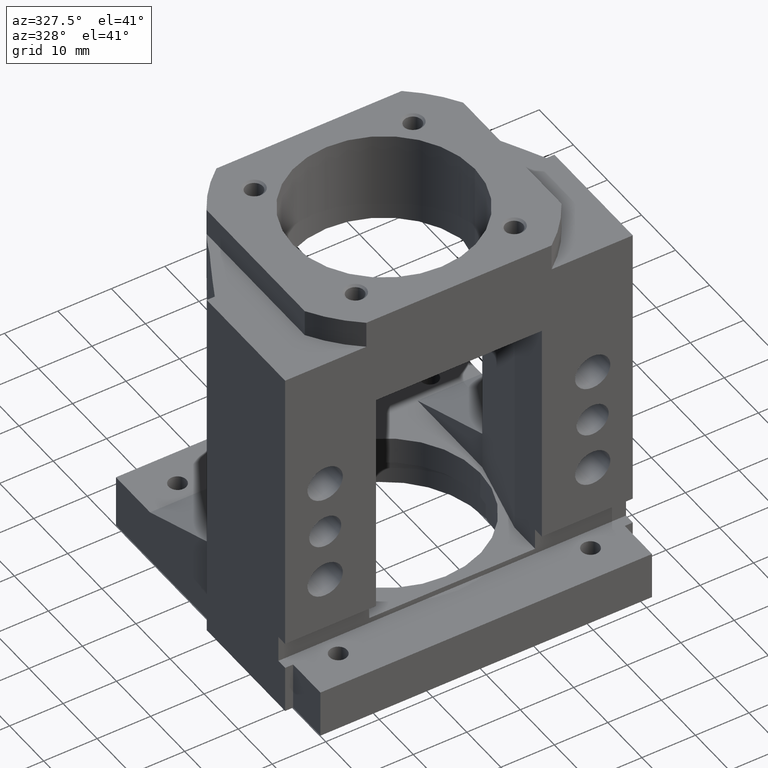
[diagram: clean part render]
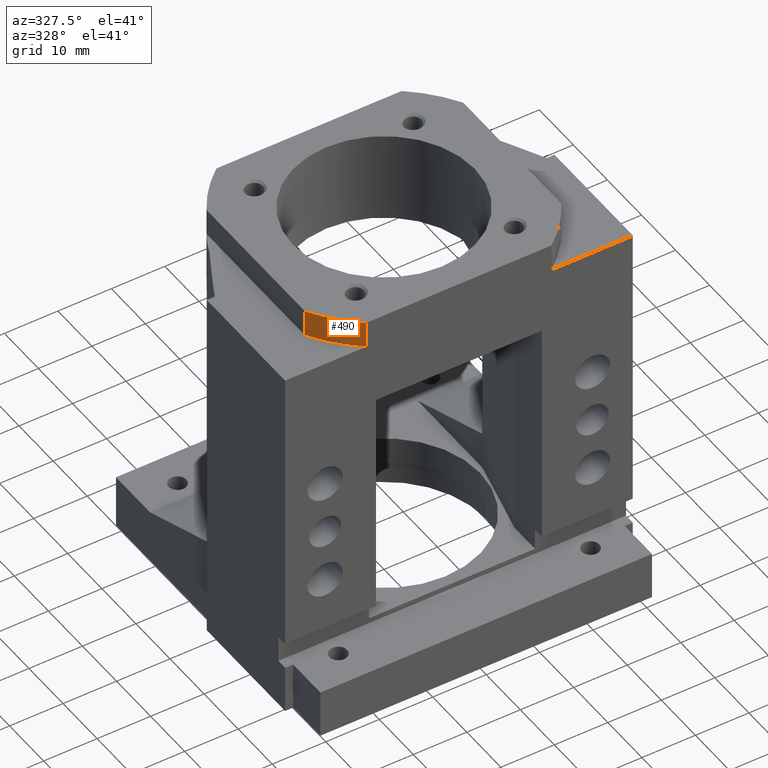
[diagram: same view with one face highlighted and labeled with its STEP entity id]
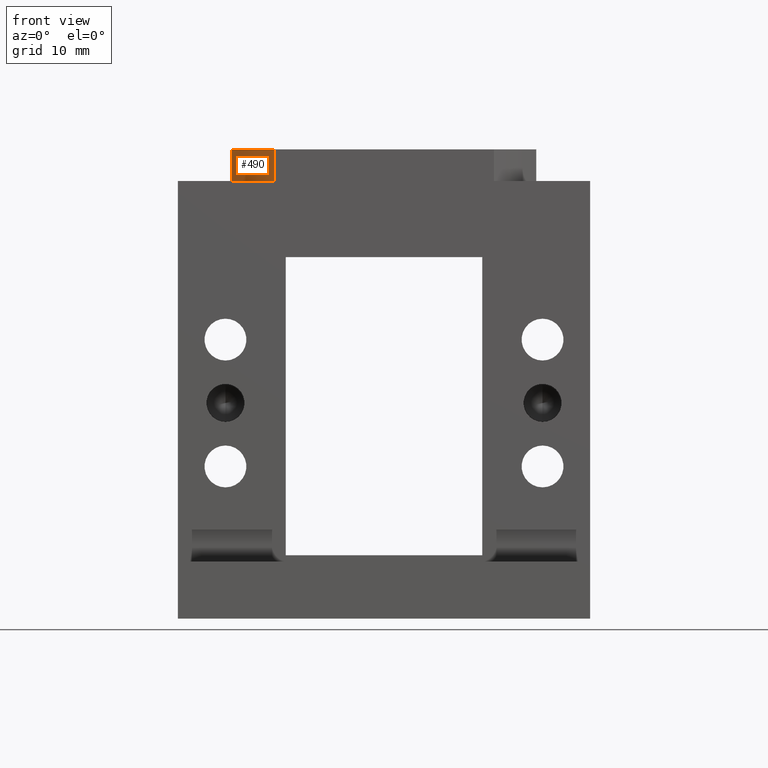
[diagram: same view with one face highlighted and labeled with its STEP entity id]
A machine part, auxiliary view. The second image highlights one B-rep face of the part: STEP entity #490.
A second angle (front view) of the same face is appended — the face is thin or edge-on in the first view.
In plain terms, the highlighted cylindrical surface (partial cylindrical patch) has radius 28 mm, axis along (-0, -0, 1).
Its self-contained STEP definition (entity closure, byte-faithful):
#30 = AXIS2_PLACEMENT_3D ( 'NONE', #2104, #1800, #1620 ) ;
#34 = AXIS2_PLACEMENT_3D ( 'NONE', #1688, #1870, #1722 ) ;
#39 = CIRCLE ( 'NONE', #30, 28.00000000000000000 ) ;
#49 = CIRCLE ( 'NONE', #34, 28.00000000000000000 ) ;
#62 = VECTOR ( 'NONE', #1562, 1000.000000000000000 ) ;
#70 = VECTOR ( 'NONE', #1718, 1000.000000000000000 ) ;
#145 = EDGE_CURVE ( 'NONE', #829, #663, #49, .T. ) ;
#152 = EDGE_CURVE ( 'NONE', #663, #831, #3180, .T. ) ;
#153 = EDGE_CURVE ( 'NONE', #706, #831, #39, .T. ) ;
#154 = EDGE_CURVE ( 'NONE', #706, #829, #3181, .T. ) ;
#490 = ADVANCED_FACE ( 'NONE', ( #3488 ), #3489, .T. ) ;
#564 = AXIS2_PLACEMENT_3D ( 'NONE', #2714, #2712, #2710 ) ;
#663 = VERTEX_POINT ( 'NONE', #2675 ) ;
#706 = VERTEX_POINT ( 'NONE', #2629 ) ;
#829 = VERTEX_POINT ( 'NONE', #2483 ) ;
#831 = VERTEX_POINT ( 'NONE', #2481 ) ;
#1214 = ORIENTED_EDGE ( 'NONE', *, *, #154, .T. ) ;
#1215 = ORIENTED_EDGE ( 'NONE', *, *, #152, .T. ) ;
#1216 = ORIENTED_EDGE ( 'NONE', *, *, #145, .T. ) ;
#1217 = ORIENTED_EDGE ( 'NONE', *, *, #153, .F. ) ;
#1486 = EDGE_LOOP ( 'NONE', ( #1216, #1215, #1217, #1214 ) ) ;
#1551 = CARTESIAN_POINT ( 'NONE',  ( -23.99999999999998200, -14.42220510185598700, -25.34369172613753900 ) ) ;
#1562 = DIRECTION ( 'NONE',  ( 0.0000000000000000000, 0.0000000000000000000, -1.000000000000000000 ) ) ;
#1614 = CARTESIAN_POINT ( 'NONE',  ( -17.32050807568875300, -22.00000000000002100, -25.34369172613753900 ) ) ;
#1620 = DIRECTION ( 'NONE',  ( 1.000000000000000000, 0.0000000000000000000, 0.0000000000000000000 ) ) ;
#1688 = CARTESIAN_POINT ( 'NONE',  ( 0.0000000000000000000, 0.0000000000000000000, 69.00000000000000000 ) ) ;
#1718 = DIRECTION ( 'NONE',  ( -0.0000000000000000000, -0.0000000000000000000, 1.000000000000000000 ) ) ;
#1722 = DIRECTION ( 'NONE',  ( -1.000000000000000000, 0.0000000000000000000, 0.0000000000000000000 ) ) ;
#1800 = DIRECTION ( 'NONE',  ( 0.0000000000000000000, -0.0000000000000000000, -1.000000000000000000 ) ) ;
#1870 = DIRECTION ( 'NONE',  ( -0.0000000000000000000, 0.0000000000000000000, -1.000000000000000000 ) ) ;
#2104 = CARTESIAN_POINT ( 'NONE',  ( 0.0000000000000000000, 0.0000000000000000000, 64.00000000000000000 ) ) ;
#2481 = CARTESIAN_POINT ( 'NONE',  ( -23.99999999999998200, -14.42220510185599000, 64.00000000000000000 ) ) ;
#2483 = CARTESIAN_POINT ( 'NONE',  ( -17.32050807568875300, -22.00000000000002100, 69.00000000000000000 ) ) ;
#2629 = CARTESIAN_POINT ( 'NONE',  ( -17.32050807568875300, -22.00000000000002100, 64.00000000000000000 ) ) ;
#2675 = CARTESIAN_POINT ( 'NONE',  ( -23.99999999999998200, -14.42220510185599000, 69.00000000000000000 ) ) ;
#2710 = DIRECTION ( 'NONE',  ( 1.000000000000000000, 0.0000000000000000000, 0.0000000000000000000 ) ) ;
#2712 = DIRECTION ( 'NONE',  ( -0.0000000000000000000, -0.0000000000000000000, 1.000000000000000000 ) ) ;
#2714 = CARTESIAN_POINT ( 'NONE',  ( 0.0000000000000000000, 0.0000000000000000000, -25.34369172613753900 ) ) ;
#3180 = LINE ( 'NONE', #1551, #62 ) ;
#3181 = LINE ( 'NONE', #1614, #70 ) ;
#3488 = FACE_OUTER_BOUND ( 'NONE', #1486, .T. ) ;
#3489 = CYLINDRICAL_SURFACE ( 'NONE', #564, 28.00000000000000000 ) ;